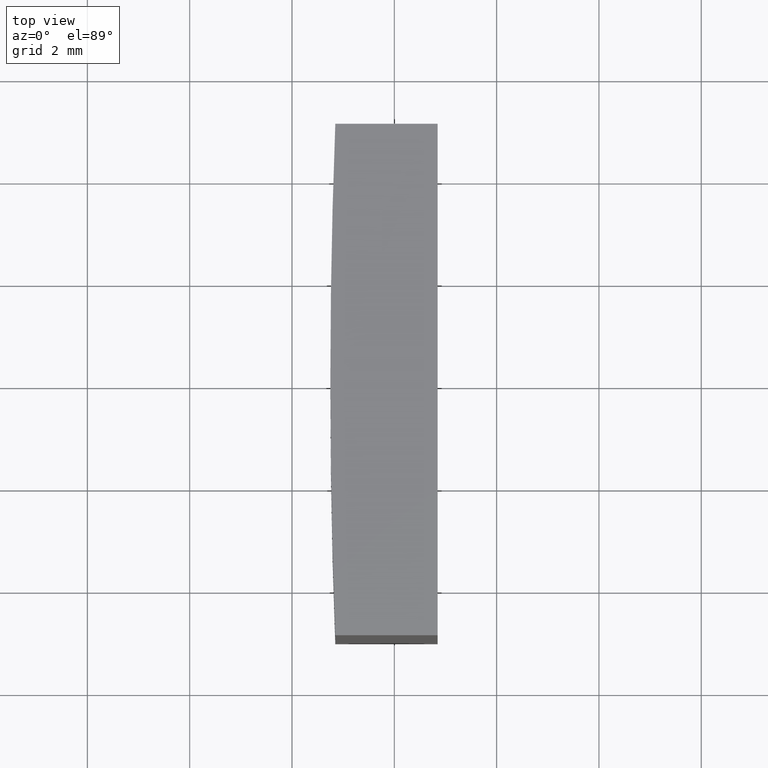
[diagram: clean part render]
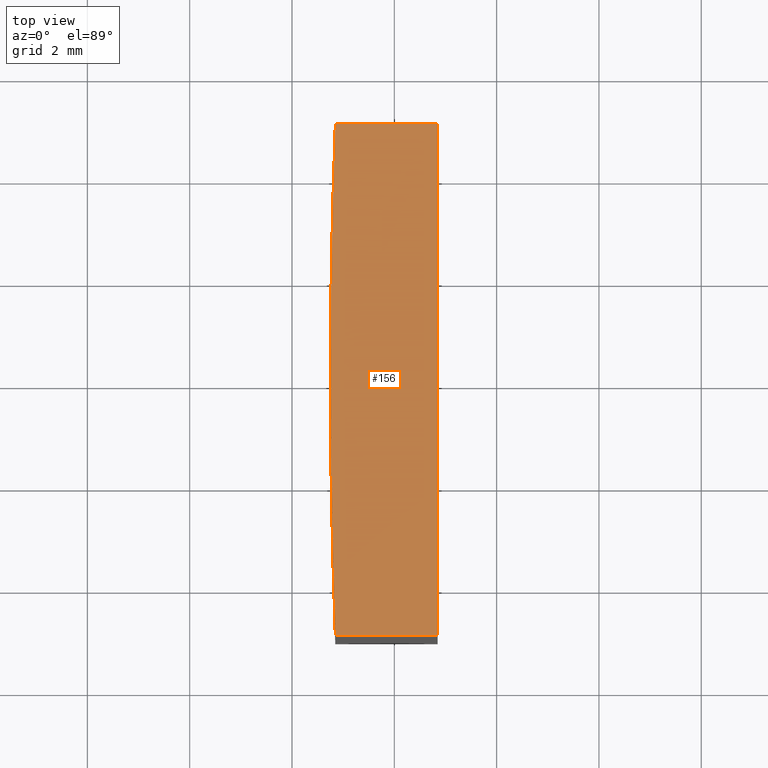
[diagram: same view with one face highlighted and labeled with its STEP entity id]
A machine part, top view. The second image highlights one B-rep face of the part: STEP entity #156.
In plain terms, the highlighted planar face has unit normal (0, 0, 1).
Its self-contained STEP definition (entity closure, byte-faithful):
#3 = LINE ( 'NONE', #211, #198 ) ;
#9 = ORIENTED_EDGE ( 'NONE', *, *, #212, .T. ) ;
#10 = VECTOR ( 'NONE', #80, 1000.000000000000000 ) ;
#12 = VERTEX_POINT ( 'NONE', #269 ) ;
#17 = CARTESIAN_POINT ( 'NONE',  ( -127.1532519915778181, -5.000000000000000888, 10.00000000000000000 ) ) ;
#18 = AXIS2_PLACEMENT_3D ( 'NONE', #62, #226, #152 ) ;
#26 = DIRECTION ( 'NONE',  ( -0.000000000000000000, 1.000000000000000000, -0.000000000000000000 ) ) ;
#33 = ORIENTED_EDGE ( 'NONE', *, *, #38, .T. ) ;
#38 = EDGE_CURVE ( 'NONE', #125, #142, #148, .T. ) ;
#44 = DIRECTION ( 'NONE',  ( -1.000000000000000000, -1.734723475976805517E-15, -0.000000000000000000 ) ) ;
#62 = CARTESIAN_POINT ( 'NONE',  ( 0.000000000000000000, 0.000000000000000000, 10.00000000000000000 ) ) ;
#72 = VERTEX_POINT ( 'NONE', #127 ) ;
#75 = DIRECTION ( 'NONE',  ( 0.000000000000000000, 0.000000000000000000, 1.000000000000000000 ) ) ;
#76 = ORIENTED_EDGE ( 'NONE', *, *, #233, .T. ) ;
#79 = CARTESIAN_POINT ( 'NONE',  ( -129.1532519915778039, -4.999999999999997335, 10.00000000000000000 ) ) ;
#80 = DIRECTION ( 'NONE',  ( 1.000000000000000000, -1.734723475976805517E-15, 0.000000000000000000 ) ) ;
#85 = AXIS2_PLACEMENT_3D ( 'NONE', #193, #114, #88 ) ;
#88 = DIRECTION ( 'NONE',  ( 1.000000000000000000, 0.000000000000000000, 0.000000000000000000 ) ) ;
#94 = EDGE_LOOP ( 'NONE', ( #76, #144, #33, #120, #9 ) ) ;
#104 = CARTESIAN_POINT ( 'NONE',  ( -129.1532519915778039, -4.999999999999997335, 10.00000000000000000 ) ) ;
#113 = CIRCLE ( 'NONE', #232, 129.2500000000000000 ) ;
#114 = DIRECTION ( 'NONE',  ( 0.000000000000000000, 0.000000000000000000, 1.000000000000000000 ) ) ;
#120 = ORIENTED_EDGE ( 'NONE', *, *, #186, .T. ) ;
#125 = VERTEX_POINT ( 'NONE', #79 ) ;
#127 = CARTESIAN_POINT ( 'NONE',  ( -127.1532519915778181, 5.000000000000000888, 10.00000000000000000 ) ) ;
#128 = LINE ( 'NONE', #246, #158 ) ;
#142 = VERTEX_POINT ( 'NONE', #17 ) ;
#144 = ORIENTED_EDGE ( 'NONE', *, *, #180, .T. ) ;
#148 = LINE ( 'NONE', #104, #10 ) ;
#152 = DIRECTION ( 'NONE',  ( 1.000000000000000000, 0.000000000000000000, -0.000000000000000000 ) ) ;
#156 = ADVANCED_FACE ( 'NONE', ( #251 ), #249, .T. ) ;
#158 = VECTOR ( 'NONE', #44, 1000.000000000000000 ) ;
#180 = EDGE_CURVE ( 'NONE', #222, #125, #239, .T. ) ;
#186 = EDGE_CURVE ( 'NONE', #142, #72, #3, .T. ) ;
#188 = CARTESIAN_POINT ( 'NONE',  ( 0.000000000000000000, 0.000000000000000000, 10.00000000000000000 ) ) ;
#193 = CARTESIAN_POINT ( 'NONE',  ( 0.000000000000000000, 0.000000000000000000, 10.00000000000000000 ) ) ;
#198 = VECTOR ( 'NONE', #26, 1000.000000000000000 ) ;
#211 = CARTESIAN_POINT ( 'NONE',  ( -127.1532519915778181, 5.000000000000000888, 10.00000000000000000 ) ) ;
#212 = EDGE_CURVE ( 'NONE', #72, #12, #128, .T. ) ;
#222 = VERTEX_POINT ( 'NONE', #268 ) ;
#226 = DIRECTION ( 'NONE',  ( 0.000000000000000000, 0.000000000000000000, 1.000000000000000000 ) ) ;
#232 = AXIS2_PLACEMENT_3D ( 'NONE', #188, #75, #254 ) ;
#233 = EDGE_CURVE ( 'NONE', #12, #222, #113, .T. ) ;
#239 = CIRCLE ( 'NONE', #85, 129.2500000000000000 ) ;
#246 = CARTESIAN_POINT ( 'NONE',  ( -129.1532519915778039, 4.999999999999997335, 10.00000000000000000 ) ) ;
#249 = PLANE ( 'NONE',  #18 ) ;
#251 = FACE_OUTER_BOUND ( 'NONE', #94, .T. ) ;
#254 = DIRECTION ( 'NONE',  ( 1.000000000000000000, 0.000000000000000000, 0.000000000000000000 ) ) ;
#268 = CARTESIAN_POINT ( 'NONE',  ( -129.2500000000000000, 0.000000000000000000, 10.00000000000000000 ) ) ;
#269 = CARTESIAN_POINT ( 'NONE',  ( -129.1532519915778039, 4.999999999999997335, 10.00000000000000000 ) ) ;